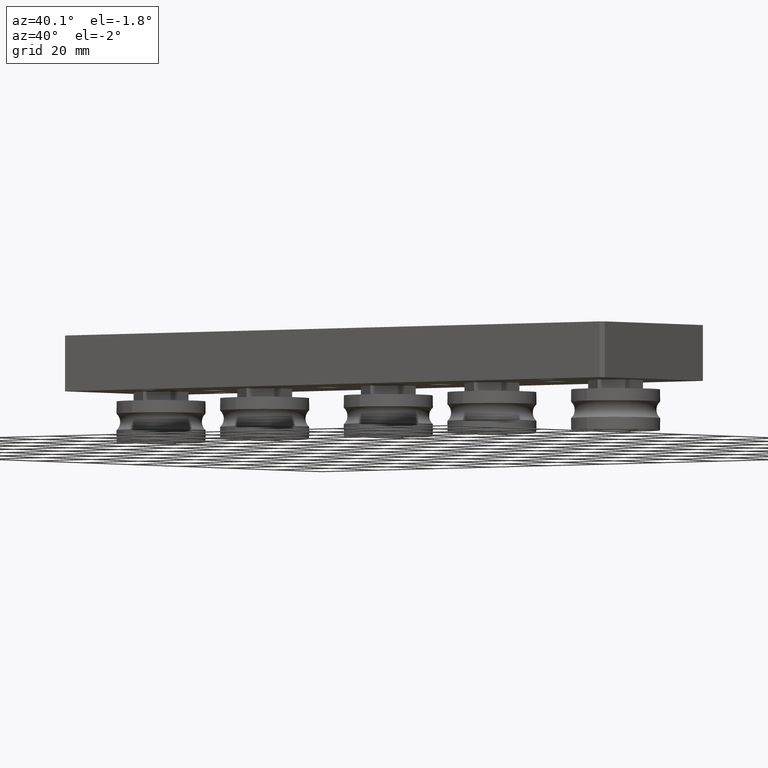
[diagram: clean part render]
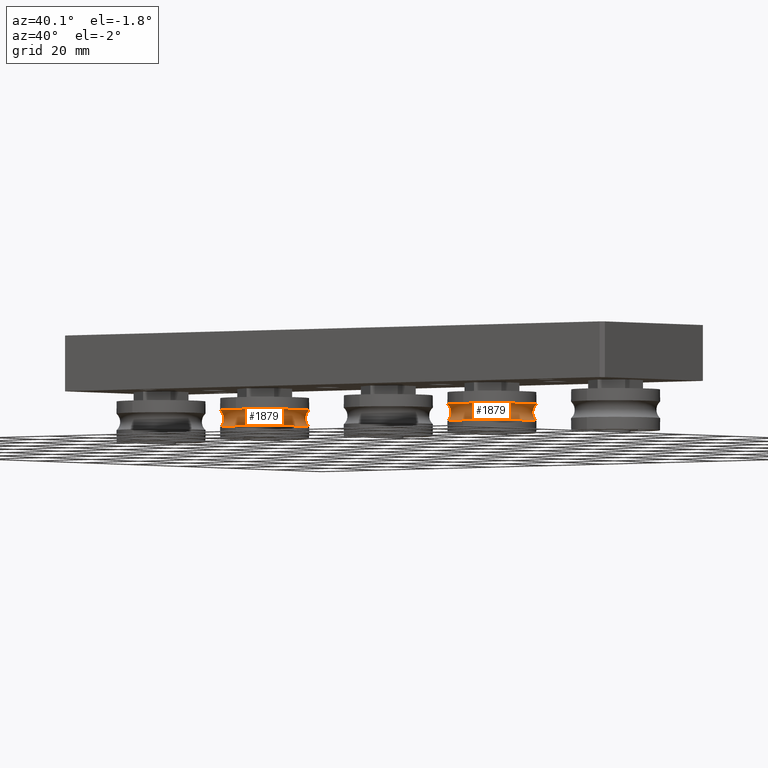
[diagram: same view with one multi-face feature highlighted, each face labeled with its STEP entity id]
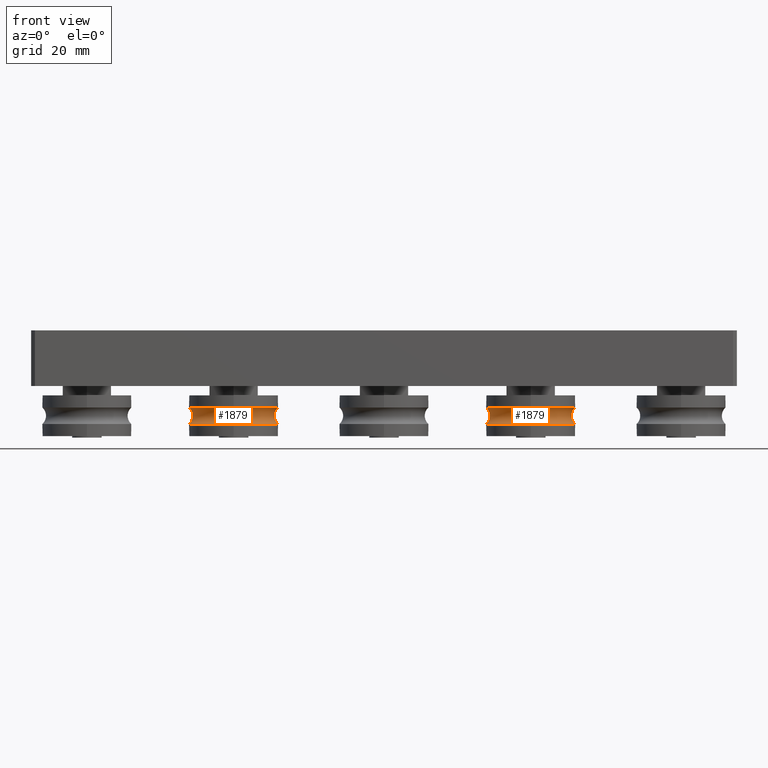
[diagram: same view with one multi-face feature highlighted, each face labeled with its STEP entity id]
A machine part, auxiliary view. The highlighted faces form ONE feature: a constant-radius fillet chain: 2 tangent blend faces with common blend radius 3 mm. The faces share edges in the B-rep.
A second angle (front view) of the same feature is appended — it is thin or edge-on in the first view.
Their STEP definitions:
[1] entity #1879 (Torus):
#110=TOROIDAL_SURFACE('',#2244,14.,3.);
#334=CIRCLE('',#2242,12.);
#335=CIRCLE('',#2243,12.);
#336=CIRCLE('',#2245,3.);
#337=CIRCLE('',#2246,12.);
#338=CIRCLE('',#2247,12.);
#449=FACE_OUTER_BOUND('',#613,.T.);
#613=EDGE_LOOP('',(#1688,#1689,#1690,#1691,#1692,#1693));
#1014=VERTEX_POINT('',#3383);
#1015=VERTEX_POINT('',#3384);
#1016=VERTEX_POINT('',#3389);
#1017=VERTEX_POINT('',#3391);
#1239=EDGE_CURVE('',#1014,#1015,#334,.T.);
#1241=EDGE_CURVE('',#1015,#1014,#335,.T.);
#1242=EDGE_CURVE('',#1015,#1016,#336,.T.);
#1243=EDGE_CURVE('',#1017,#1016,#337,.T.);
#1244=EDGE_CURVE('',#1016,#1017,#338,.T.);
#1688=ORIENTED_EDGE('',*,*,#1239,.T.);
#1689=ORIENTED_EDGE('',*,*,#1242,.T.);
#1690=ORIENTED_EDGE('',*,*,#1243,.F.);
#1691=ORIENTED_EDGE('',*,*,#1244,.F.);
#1692=ORIENTED_EDGE('',*,*,#1242,.F.);
#1693=ORIENTED_EDGE('',*,*,#1241,.T.);
#1879=ADVANCED_FACE('',(#449),#110,.F.);
#2242=AXIS2_PLACEMENT_3D('',#3385,#2811,#2812);
#2243=AXIS2_PLACEMENT_3D('',#3387,#2814,#2815);
#2244=AXIS2_PLACEMENT_3D('',#3388,#2816,#2817);
#2245=AXIS2_PLACEMENT_3D('',#3390,#2818,#2819);
#2246=AXIS2_PLACEMENT_3D('',#3392,#2820,#2821);
#2247=AXIS2_PLACEMENT_3D('',#3393,#2822,#2823);
#2811=DIRECTION('center_axis',(1.,0.,0.));
#2812=DIRECTION('ref_axis',(0.,1.,0.));
#2814=DIRECTION('center_axis',(1.,0.,0.));
#2815=DIRECTION('ref_axis',(0.,1.,0.));
#2816=DIRECTION('center_axis',(1.,0.,0.));
#2817=DIRECTION('ref_axis',(0.,0.,-1.));
#2818=DIRECTION('center_axis',(0.,-1.,-1.22464679914735E-16));
#2819=DIRECTION('ref_axis',(0.,-1.22464679914735E-16,1.));
#2820=DIRECTION('center_axis',(1.,0.,0.));
#2821=DIRECTION('ref_axis',(0.,1.,0.));
#2822=DIRECTION('center_axis',(1.,0.,0.));
#2823=DIRECTION('ref_axis',(0.,1.,0.));
#3383=CARTESIAN_POINT('',(-2.23606797749979,-12.,-1.46957615897682E-15));
#3384=CARTESIAN_POINT('',(-2.23606797749979,-1.46957615897682E-15,12.));
#3385=CARTESIAN_POINT('Origin',(-2.23606797749979,0.,0.));
#3387=CARTESIAN_POINT('Origin',(-2.23606797749979,0.,0.));
#3388=CARTESIAN_POINT('Origin',(0.,0.,0.));
#3389=CARTESIAN_POINT('',(2.23606797749979,-1.46957615897682E-15,12.));
#3390=CARTESIAN_POINT('Origin',(0.,-1.71450551880629E-15,14.));
#3391=CARTESIAN_POINT('',(2.23606797749979,-12.,-1.46957615897682E-15));
#3392=CARTESIAN_POINT('Origin',(2.23606797749979,0.,0.));
#3393=CARTESIAN_POINT('Origin',(2.23606797749979,0.,0.));
[2] entity #1879 (Torus):
#110=TOROIDAL_SURFACE('',#2244,14.,3.);
#334=CIRCLE('',#2242,12.);
#335=CIRCLE('',#2243,12.);
#336=CIRCLE('',#2245,3.);
#337=CIRCLE('',#2246,12.);
#338=CIRCLE('',#2247,12.);
#449=FACE_OUTER_BOUND('',#613,.T.);
#613=EDGE_LOOP('',(#1688,#1689,#1690,#1691,#1692,#1693));
#1014=VERTEX_POINT('',#3383);
#1015=VERTEX_POINT('',#3384);
#1016=VERTEX_POINT('',#3389);
#1017=VERTEX_POINT('',#3391);
#1239=EDGE_CURVE('',#1014,#1015,#334,.T.);
#1241=EDGE_CURVE('',#1015,#1014,#335,.T.);
#1242=EDGE_CURVE('',#1015,#1016,#336,.T.);
#1243=EDGE_CURVE('',#1017,#1016,#337,.T.);
#1244=EDGE_CURVE('',#1016,#1017,#338,.T.);
#1688=ORIENTED_EDGE('',*,*,#1239,.T.);
#1689=ORIENTED_EDGE('',*,*,#1242,.T.);
#1690=ORIENTED_EDGE('',*,*,#1243,.F.);
#1691=ORIENTED_EDGE('',*,*,#1244,.F.);
#1692=ORIENTED_EDGE('',*,*,#1242,.F.);
#1693=ORIENTED_EDGE('',*,*,#1241,.T.);
#1879=ADVANCED_FACE('',(#449),#110,.F.);
#2242=AXIS2_PLACEMENT_3D('',#3385,#2811,#2812);
#2243=AXIS2_PLACEMENT_3D('',#3387,#2814,#2815);
#2244=AXIS2_PLACEMENT_3D('',#3388,#2816,#2817);
#2245=AXIS2_PLACEMENT_3D('',#3390,#2818,#2819);
#2246=AXIS2_PLACEMENT_3D('',#3392,#2820,#2821);
#2247=AXIS2_PLACEMENT_3D('',#3393,#2822,#2823);
#2811=DIRECTION('center_axis',(1.,0.,0.));
#2812=DIRECTION('ref_axis',(0.,1.,0.));
#2814=DIRECTION('center_axis',(1.,0.,0.));
#2815=DIRECTION('ref_axis',(0.,1.,0.));
#2816=DIRECTION('center_axis',(1.,0.,0.));
#2817=DIRECTION('ref_axis',(0.,0.,-1.));
#2818=DIRECTION('center_axis',(0.,-1.,-1.22464679914735E-16));
#2819=DIRECTION('ref_axis',(0.,-1.22464679914735E-16,1.));
#2820=DIRECTION('center_axis',(1.,0.,0.));
#2821=DIRECTION('ref_axis',(0.,1.,0.));
#2822=DIRECTION('center_axis',(1.,0.,0.));
#2823=DIRECTION('ref_axis',(0.,1.,0.));
#3383=CARTESIAN_POINT('',(-2.23606797749979,-12.,-1.46957615897682E-15));
#3384=CARTESIAN_POINT('',(-2.23606797749979,-1.46957615897682E-15,12.));
#3385=CARTESIAN_POINT('Origin',(-2.23606797749979,0.,0.));
#3387=CARTESIAN_POINT('Origin',(-2.23606797749979,0.,0.));
#3388=CARTESIAN_POINT('Origin',(0.,0.,0.));
#3389=CARTESIAN_POINT('',(2.23606797749979,-1.46957615897682E-15,12.));
#3390=CARTESIAN_POINT('Origin',(0.,-1.71450551880629E-15,14.));
#3391=CARTESIAN_POINT('',(2.23606797749979,-12.,-1.46957615897682E-15));
#3392=CARTESIAN_POINT('Origin',(2.23606797749979,0.,0.));
#3393=CARTESIAN_POINT('Origin',(2.23606797749979,0.,0.));